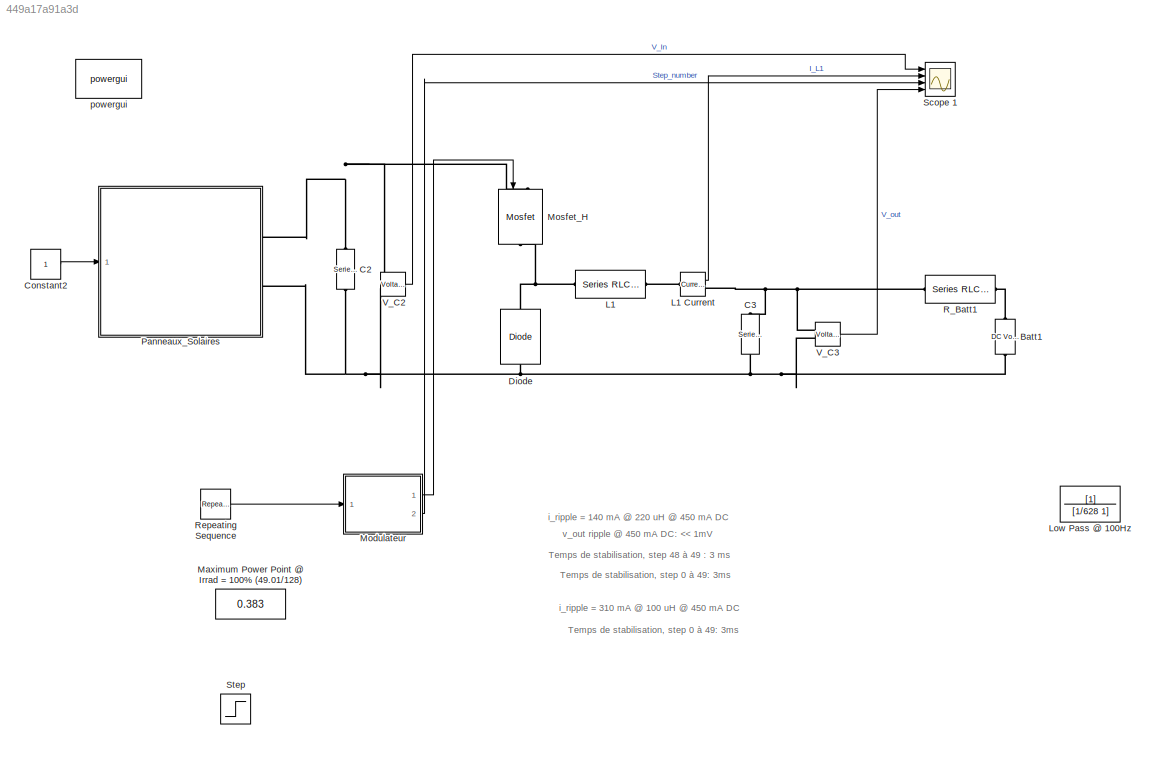
MODEL slx_449a17a91a3d
KIND model
BLOCK [Reference] Batt1  REF=powerlib/Electrical
Sources/DC Voltage Source
  Amplitude = V_Batt
  Measurements = None
  Ports = [0, 0, 0, 0, 0, 1, 1]
  SourceBlock = powerlib/Electrical\nSources/DC Voltage Source
  SourceType = DC Voltage Source
BLOCK [Reference] C2  REF=powerlib/Elements/Series RLC Branch
  BranchType = C
  Capacitance = 22e-6
  Inductance = 1e-3
  InitialCurrent = 0
  InitialVoltage = V_Batt
  LConnTagsString = __new0
  Measurements = None
  Ports = [0, 0, 0, 0, 0, 1, 1]
  RConnTagsString = __new0
  Resistance = 1
  SetiL0 = off
  Setx0 = on
  SourceBlock = powerlib/Elements/Series RLC Branch
  SourceType = Series RLC Branch
BLOCK [Reference] C3  REF=powerlib/Elements/Series RLC Branch
  BranchType = C
  Capacitance = 220e-6
  Inductance = 1e-3
  InitialCurrent = 0
  InitialVoltage = 6.022
  LConnTagsString = __new0
  Measurements = None
  Ports = [0, 0, 0, 0, 0, 1, 1]
  RConnTagsString = __new0
  Resistance = 1
  SetiL0 = off
  Setx0 = on
  SourceBlock = powerlib/Elements/Series RLC Branch
  SourceType = Series RLC Branch
BLOCK [Constant] Constant2
BLOCK [Reference] Diode  REF=powerlib/Power
Electronics/Diode
  Cs = 250e-9
  IC = 0
  Lon = 0
  Measurements = off
  Ports = [0, 0, 0, 0, 0, 1, 1]
  Ron = 0.001
  Rs = 500
  SourceBlock = powerlib/Power\nElectronics/Diode
  SourceType = Diode
  UseSnubber = off
  Vf = 0.05
BLOCK [Reference] L1  REF=powerlib/Elements/Series RLC Branch
  BranchType = RL
  Capacitance = 1e-6
  Inductance = 100e-6
  InitialCurrent = 0
  InitialVoltage = 0
  LConnTagsString = __new0
  Measurements = None
  Ports = [0, 0, 0, 0, 0, 1, 1]
  RConnTagsString = __new0
  Resistance = 0.09
  SetiL0 = on
  Setx0 = off
  SourceBlock = powerlib/Elements/Series RLC Branch
  SourceType = Series RLC Branch
BLOCK [Reference] L1 Current  REF=powerlib/Measurements/Current Measurement
  OutputType = Complex
  PSBequivalent = 0
  PhasorSimulation = off
  Ports = [0, 1, 0, 0, 0, 1, 1]
  SourceBlock = powerlib/Measurements/Current Measurement
  SourceType = Current Measurement
  UserDataPersistent = on
BLOCK [TransferFcn] Low Pass @ 100Hz
  Denominator = [1/628 1]
BLOCK [Constant] Maximum Power Point @ Irrad = 100% (49.01//128)
  Value = 0.383
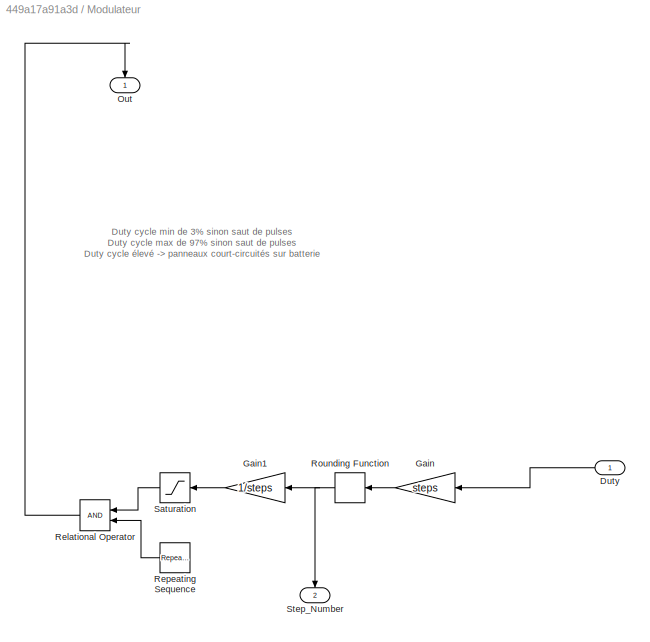
BLOCK [SubSystem] Modulateur
  Ports = [1, 2]
  RequestExecContextInheritance = off
BLOCK [Inport] Modulateur/Duty
  IconDisplay = Port number
BLOCK [Gain] Modulateur/Gain
  Gain = steps
  OutDataTypeStr = Inherit: Inherit via internal rule
  ParamDataTypeStr = Inherit: Inherit via internal rule
  SaturateOnIntegerOverflow = off
BLOCK [Gain] Modulateur/Gain1
  Gain = 1/steps
  OutDataTypeStr = Inherit: Inherit via internal rule
  ParamDataTypeStr = Inherit: Inherit via internal rule
  SaturateOnIntegerOverflow = off
BLOCK [Outport] Modulateur/Out
  IconDisplay = Port number
BLOCK [RelationalOperator] Modulateur/Relational Operator
  InputSameDT = off
  OutDataTypeStr = boolean
  Ports = [2, 1]
BLOCK [Reference] Modulateur/Repeating Sequence  REF=simulink/Sources/Repeating
Sequence
  Ports = [0, 1]
  SourceBlock = simulink/Sources/Repeating\nSequence
  SourceType = Repeating table
  rep_seq_t = [0 1/freq]
  rep_seq_y = [0 1]
BLOCK [Rounding] Modulateur/Rounding Function
BLOCK [Saturate] Modulateur/Saturation
  InputPortMap = u0
  LowerLimit = 0.03
  Ports = [1, 1]
  UpperLimit = 0.97
BLOCK [Outport] Modulateur/Step_Number
  IconDisplay = Port number
  Port = 2
BLOCK [Reference] Mosfet_H  REF=powerlib/Power
Electronics/Mosfet
  Cs = 25e-9
  IC = 0
  Lon = 0
  Measurements = off
  Ports = [1, 0, 0, 0, 0, 1, 1]
  Rd = 0.01
  Ron = RDS_on
  Rs = 1000000
  SourceBlock = powerlib/Power\nElectronics/Mosfet
  SourceType = Mosfet
  Vfd = 0.7
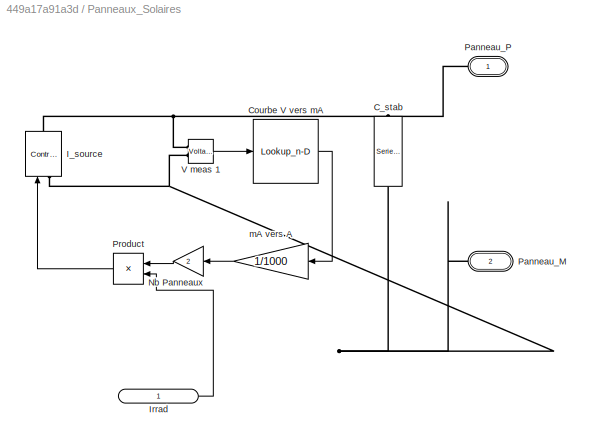
BLOCK [SubSystem] Panneaux_Solaires
  Ports = [1, 0, 0, 0, 0, 0, 2]
  RequestExecContextInheritance = off
BLOCK [Reference] Panneaux_Solaires/C_stab  REF=powerlib/Elements/Series RLC Branch
  BranchType = C
  Capacitance = 1e-9
  Inductance = 1e-3
  InitialCurrent = 0
  InitialVoltage = V_Batt
  LConnTagsString = __new0
  Measurements = None
  Ports = [0, 0, 0, 0, 0, 1, 1]
  RConnTagsString = __new0
  Resistance = 1
  SetiL0 = off
  Setx0 = off
  SourceBlock = powerlib/Elements/Series RLC Branch
  SourceType = Series RLC Branch
BLOCK [Lookup_n-D] Panneaux_Solaires/Courbe V vers mA
  BreakpointsForDimension1 = rev_voltage
  InternalRulePriority = Speed
  NumberOfTableDimensions = 1
  Ports = [1, 1]
  RndMeth = Simplest
  Table = rev_current
  UseLastTableValue = on
BLOCK [Reference] Panneaux_Solaires/I_source  REF=powerlib/Electrical
Sources/Controlled Current Source
  Amplitude = 0
  Frequency = 0
  Initialize = off
  Measurements = None
  Phase = 0
  Ports = [1, 0, 0, 0, 0, 1, 1]
  SourceBlock = powerlib/Electrical\nSources/Controlled Current Source
  SourceType = Controlled Current Source
  Source_Type = DC
BLOCK [Inport] Panneaux_Solaires/Irrad
  IconDisplay = Port number
BLOCK [Gain] Panneaux_Solaires/Nb Panneaux
  Gain = 2
  OutDataTypeStr = Inherit: Inherit via internal rule
  ParamDataTypeStr = Inherit: Inherit via internal rule
  SaturateOnIntegerOverflow = off
BLOCK [PMIOPort] Panneaux_Solaires/Panneau_M
  Port = 2
  Side = Right
BLOCK [PMIOPort] Panneaux_Solaires/Panneau_P
  Port = 1
  Side = Right
BLOCK [Product] Panneaux_Solaires/Product
  InputSameDT = off
  OutDataTypeStr = Inherit: Inherit via internal rule
  Ports = [2, 1]
  RndMeth = Floor
  SaturateOnIntegerOverflow = off
BLOCK [Reference] Panneaux_Solaires/V meas 1  REF=powerlib/Measurements/Voltage Measurement
  OutputType = Complex
  PSBequivalent = 0
  PhasorSimulation = off
  Ports = [0, 1, 0, 0, 0, 2]
  SourceBlock = powerlib/Measurements/Voltage Measurement
  SourceType = Voltage Measurement
  UserDataPersistent = on
BLOCK [Gain] Panneaux_Solaires/mA vers A
  Gain = 1/1000
  OutDataTypeStr = Inherit: Inherit via internal rule
  ParamDataTypeStr = Inherit: Inherit via internal rule
  SaturateOnIntegerOverflow = off
BLOCK [Reference] R_Batt1  REF=powerlib/Elements/Series RLC Branch
  BranchType = R
  Capacitance = 1e-6
  Inductance = 1e-3
  InitialCurrent = 0
  InitialVoltage = 0
  LConnTagsString = __new0
  Measurements = None
  Ports = [0, 0, 0, 0, 0, 1, 1]
  RConnTagsString = __new0
  Resistance = 0.045
  SetiL0 = off
  Setx0 = off
  SourceBlock = powerlib/Elements/Series RLC Branch
  SourceType = Series RLC Branch
BLOCK [Reference] Repeating Sequence  REF=simulink/Sources/Repeating
Sequence
  Ports = [0, 1]
  SourceBlock = simulink/Sources/Repeating\nSequence
  SourceType = Repeating table
  rep_seq_t = [0 0.1]
  rep_seq_y = [0.33 0.42]
BLOCK [Scope] Scope 1
  DataFormat = StructureWithTime
  Floating = off
  LegendLocations = 0.93442      0.9425    0.047619    0.020333\n0.93502      0.7045    0.047024    0.020333\n0.90972       0.467    0.072024    0.020333\n0.93056       0.229     0.05119    0.020333
  LimitDataPoints = off
  NumInputPorts = 4
  Ports = [4]
  SampleTime = 0
  ShowLegends = on
  YMax = 17.24~0.53~0.0125~5
  YMin = 17.06~0.38~0.0118~-5
  ZoomMode = yonly
BLOCK [Step] Step
  After = 0.383
  SampleTime = 0
  Time = 0.02
BLOCK [Reference] V_C2  REF=powerlib/Measurements/Voltage Measurement
  OutputType = Complex
  PSBequivalent = 0
  PhasorSimulation = off
  Ports = [0, 1, 0, 0, 0, 2]
  SourceBlock = powerlib/Measurements/Voltage Measurement
  SourceType = Voltage Measurement
  UserDataPersistent = on
BLOCK [Reference] V_C3  REF=powerlib/Measurements/Voltage Measurement
  OutputType = Complex
  PSBequivalent = 0
  PhasorSimulation = off
  Ports = [0, 1, 0, 0, 0, 2]
  SourceBlock = powerlib/Measurements/Voltage Measurement
  SourceType = Voltage Measurement
  UserDataPersistent = on
BLOCK [Reference] powergui  REF=powerlib/powergui
  DisableRonSwitches = off
  DisableSnubberDevices = off
  DisableVfSwitches = off
  DisplayEquations = off
  DisplayStyle = 1
  EnableUseOfTLC = off
  ErrMax = 1e-4
  Frange = [0:2:500]
  FreqAxis = off
  FunctionMessages = off
  HookPort = off
  Interpol = off
  Iterations = 50
  MaxFrequency = 1000
  Pbase = 100e6
  Ports = []
  Priority = 1
  ResistiveCurrentMeasurement = off
  RestoreLinks = warning
  RmsSteady = 1
  SPID = off
  SampleTime = 20e-9
  ShowGrid = off
  SolverType = Tustin
  SourceBlock = powerlib/powergui
  SourceType = PSB option menu block
  StartTime = 0.0
  SwTol = 0
  Ts = 0
  UnitsV = kV
  UnitsW = MW
  UserDataPersistent = on
  Xlog = on
  Ylog = off
  ZoomFFT = on
  cycles = 1
  display = off
  echomessages = off
  frequency = 60
  frequencyindice = 0
  frequencyindicesteady = 1
  fundamental = 60
  methode = off
  save = off
  structure = 0
  variable = ZData
  x0status = blocks
ANNOTATION (root): Temps de stabilisation, step 0 à 49: 3ms
ANNOTATION (root): Temps de stabilisation, step 48 à 49 : 3 ms
ANNOTATION (root): i_ripple = 140 mA @ 220 uH @ 450 mA DC
ANNOTATION (root): i_ripple = 310 mA @ 100 uH @ 450 mA DC
ANNOTATION (root): v_out ripple @ 450 mA DC: << 1mV
ANNOTATION Modulateur: Duty cycle min de 3% sinon saut de pulses Duty cycle max de 97% sinon saut de pulses Duty cycle élevé -> panneaux court-circuités sur batterie
LINE Constant2:1 -> Panneaux_Solaires:1
LINE L1 Current:1 -> Scope 1:2
LINE Modulateur/Duty:1 -> Modulateur/Gain:1
LINE Modulateur/Gain1:1 -> Modulateur/Saturation:1
LINE Modulateur/Gain:1 -> Modulateur/Rounding Function:1
LINE Modulateur/Relational Operator:1 -> Modulateur/Out:1
LINE Modulateur/Repeating Sequence:1 -> Modulateur/Relational Operator:2
NET Modulateur/Rounding Function:1 -> Modulateur/Gain1:1, Modulateur/Step_Number:1
LINE Modulateur/Saturation:1 -> Modulateur/Relational Operator:1
LINE Modulateur:1 -> Mosfet_H:1
LINE Modulateur:2 -> Scope 1:3
LINE Panneaux_Solaires/Courbe V vers mA:1 -> Panneaux_Solaires/mA vers A:1
LINE Panneaux_Solaires/Irrad:1 -> Panneaux_Solaires/Product:2
LINE Panneaux_Solaires/Nb Panneaux:1 -> Panneaux_Solaires/Product:1
LINE Panneaux_Solaires/Product:1 -> Panneaux_Solaires/I_source:1
LINE Panneaux_Solaires/V meas 1:1 -> Panneaux_Solaires/Courbe V vers mA:1
LINE Panneaux_Solaires/mA vers A:1 -> Panneaux_Solaires/Nb Panneaux:1
LINE Repeating Sequence:1 -> Modulateur:1
LINE V_C2:1 -> Scope 1:1
LINE V_C3:1 -> Scope 1:4
PNET net1: Batt1:LConn1 -- C2:RConn1 -- C3:RConn1 -- Diode:LConn1 -- Panneaux_Solaires:RConn2 -- V_C2:LConn2 -- V_C3:LConn2
PLINE Batt1:RConn1 -- R_Batt1:RConn1
PNET net2: C2:LConn1 -- Mosfet_H:LConn1 -- Panneaux_Solaires:RConn1 -- V_C2:LConn1
PNET net3: C3:LConn1 -- L1 Current:RConn1 -- R_Batt1:LConn1 -- V_C3:LConn1
PNET net4: Diode:RConn1 -- L1:LConn1 -- Mosfet_H:RConn1
PLINE L1 Current:LConn1 -- L1:RConn1
PNET net5: Panneaux_Solaires/C_stab:LConn1 -- Panneaux_Solaires/I_source:RConn1 -- Panneaux_Solaires/Panneau_P:RConn1 -- Panneaux_Solaires/V meas 1:LConn1
PNET net6: Panneaux_Solaires/C_stab:RConn1 -- Panneaux_Solaires/I_source:LConn1 -- Panneaux_Solaires/Panneau_M:RConn1 -- Panneaux_Solaires/V meas 1:LConn2
note: NET lines group one-source signal fan-out (src -> all destinations, sorted); 1:1 wires keep LINE; PNET lines group multi-terminal physical nets as a canonical sorted terminal list (undirected conserving connections); 2-terminal nets keep the pairwise PLINE form
